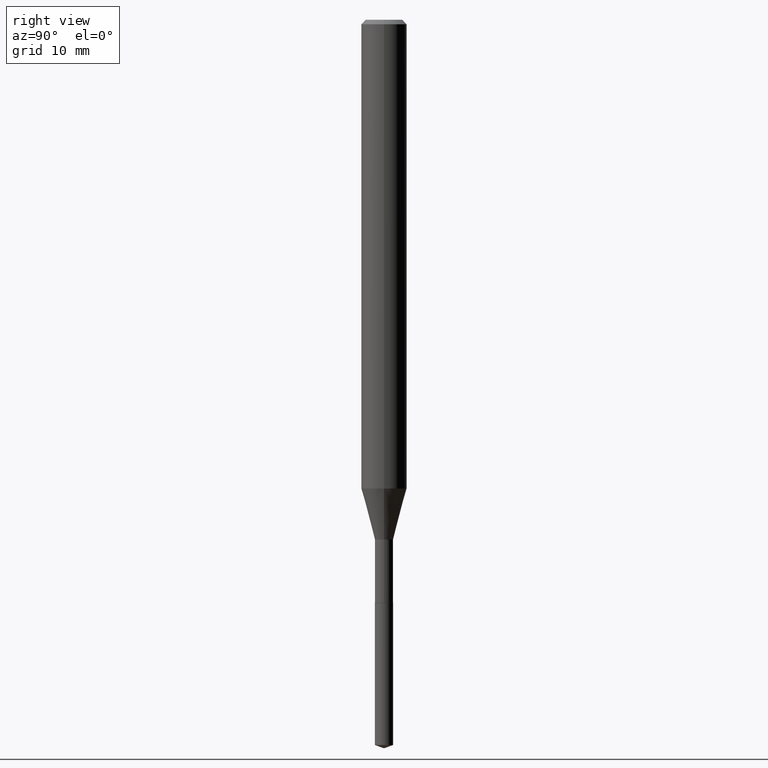
[diagram: clean part render]
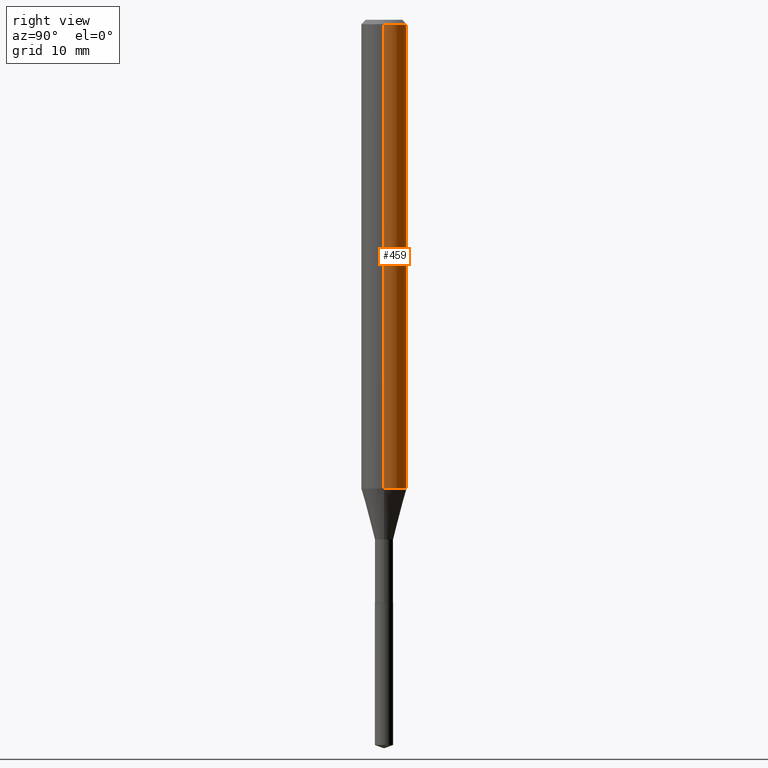
[diagram: same view with one face highlighted and labeled with its STEP entity id]
A machine part, right view. The second image highlights one B-rep face of the part: STEP entity #459.
In plain terms, the highlighted cylindrical surface (edge-blend (fillet) strip) has radius 2.0003 mm, axis along (-0, 0, 1).
Its self-contained STEP definition (entity closure, byte-faithful):
#17 = VERTEX_POINT ( 'NONE', #354 ) ;
#19 = EDGE_LOOP ( 'NONE', ( #338, #84, #243, #43 ) ) ;
#21 = CARTESIAN_POINT ( 'NONE',  ( 0.000000000000000000, 0.000000000000000000, 0.000000000000000000 ) ) ;
#22 = EDGE_CURVE ( 'NONE', #134, #48, #349, .T. ) ;
#32 = EDGE_CURVE ( 'NONE', #48, #17, #168, .T. ) ;
#43 = ORIENTED_EDGE ( 'NONE', *, *, #108, .F. ) ;
#48 = VERTEX_POINT ( 'NONE', #363 ) ;
#61 = LINE ( 'NONE', #449, #89 ) ;
#65 = FACE_OUTER_BOUND ( 'NONE', #19, .T. ) ;
#67 = DIRECTION ( 'NONE',  ( -2.445468806185136877E-29, 3.491481338843145188E-15, 1.000000000000000000 ) ) ;
#84 = ORIENTED_EDGE ( 'NONE', *, *, #32, .T. ) ;
#89 = VECTOR ( 'NONE', #67, 39.37007874015748143 ) ;
#96 = DIRECTION ( 'NONE',  ( 1.000000000000000000, -6.982962677686267499E-15, 4.876176775795935232E-29 ) ) ;
#101 = DIRECTION ( 'NONE',  ( -2.445468806185136597E-29, 3.491481338843145583E-15, 1.000000000000000000 ) ) ;
#108 = EDGE_CURVE ( 'NONE', #134, #272, #61, .T. ) ;
#129 = DIRECTION ( 'NONE',  ( 1.000000000000000000, -6.982962677686269866E-15, 0.000000000000000000 ) ) ;
#134 = VERTEX_POINT ( 'NONE', #149 ) ;
#140 = VECTOR ( 'NONE', #286, 39.37007874015748143 ) ;
#149 = CARTESIAN_POINT ( 'NONE',  ( 0.07875000000000016709, -6.210509438873335561E-15, -1.621260599342370323 ) ) ;
#165 = CARTESIAN_POINT ( 'NONE',  ( 3.964742222388785374E-29, -5.660601128005539849E-15, -1.621260599342370323 ) ) ;
#166 = EDGE_CURVE ( 'NONE', #272, #17, #452, .T. ) ;
#168 = LINE ( 'NONE', #204, #140 ) ;
#175 = DIRECTION ( 'NONE',  ( 1.000000000000000000, -6.982962677686265922E-15, 0.000000000000000000 ) ) ;
#204 = CARTESIAN_POINT ( 'NONE',  ( -0.07875000000000008382, 5.595524044110794920E-16, -3.873661383575742696E-30 ) ) ;
#243 = ORIENTED_EDGE ( 'NONE', *, *, #166, .F. ) ;
#266 = CARTESIAN_POINT ( 'NONE',  ( 0.07875000000000000056, -6.048991419545734691E-16, -0.01575000000000011460 ) ) ;
#272 = VERTEX_POINT ( 'NONE', #266 ) ;
#279 = AXIS2_PLACEMENT_3D ( 'NONE', #325, #297, #175 ) ;
#286 = DIRECTION ( 'NONE',  ( -2.445468806185136877E-29, 3.491481338843145188E-15, 1.000000000000000000 ) ) ;
#288 = CYLINDRICAL_SURFACE ( 'NONE', #479, 0.07875000000000008382 ) ;
#297 = DIRECTION ( 'NONE',  ( -2.445468806185136597E-29, 3.491481338843145583E-15, 1.000000000000000000 ) ) ;
#301 = AXIS2_PLACEMENT_3D ( 'NONE', #165, #315, #129 ) ;
#315 = DIRECTION ( 'NONE',  ( -2.445468806185136597E-29, 3.491481338843145583E-15, 1.000000000000000000 ) ) ;
#325 = CARTESIAN_POINT ( 'NONE',  ( 3.851613369741617865E-31, -5.499083108677993854E-17, -0.01575000000000011460 ) ) ;
#338 = ORIENTED_EDGE ( 'NONE', *, *, #22, .T. ) ;
#349 = CIRCLE ( 'NONE', #301, 0.07875000000000018097 ) ;
#354 = CARTESIAN_POINT ( 'NONE',  ( -0.07875000000000000056, -2.298243575135078818E-15, -0.01575000000000011460 ) ) ;
#363 = CARTESIAN_POINT ( 'NONE',  ( -0.07875000000000016709, -5.101048723594459469E-15, -1.621260599342370323 ) ) ;
#449 = CARTESIAN_POINT ( 'NONE',  ( 0.07875000000000008382, -5.499083108677941345E-16, 3.839989210939303220E-30 ) ) ;
#452 = CIRCLE ( 'NONE', #279, 0.07875000000000000056 ) ;
#459 = ADVANCED_FACE ( 'NONE', ( #65 ), #288, .T. ) ;
#479 = AXIS2_PLACEMENT_3D ( 'NONE', #21, #101, #96 ) ;